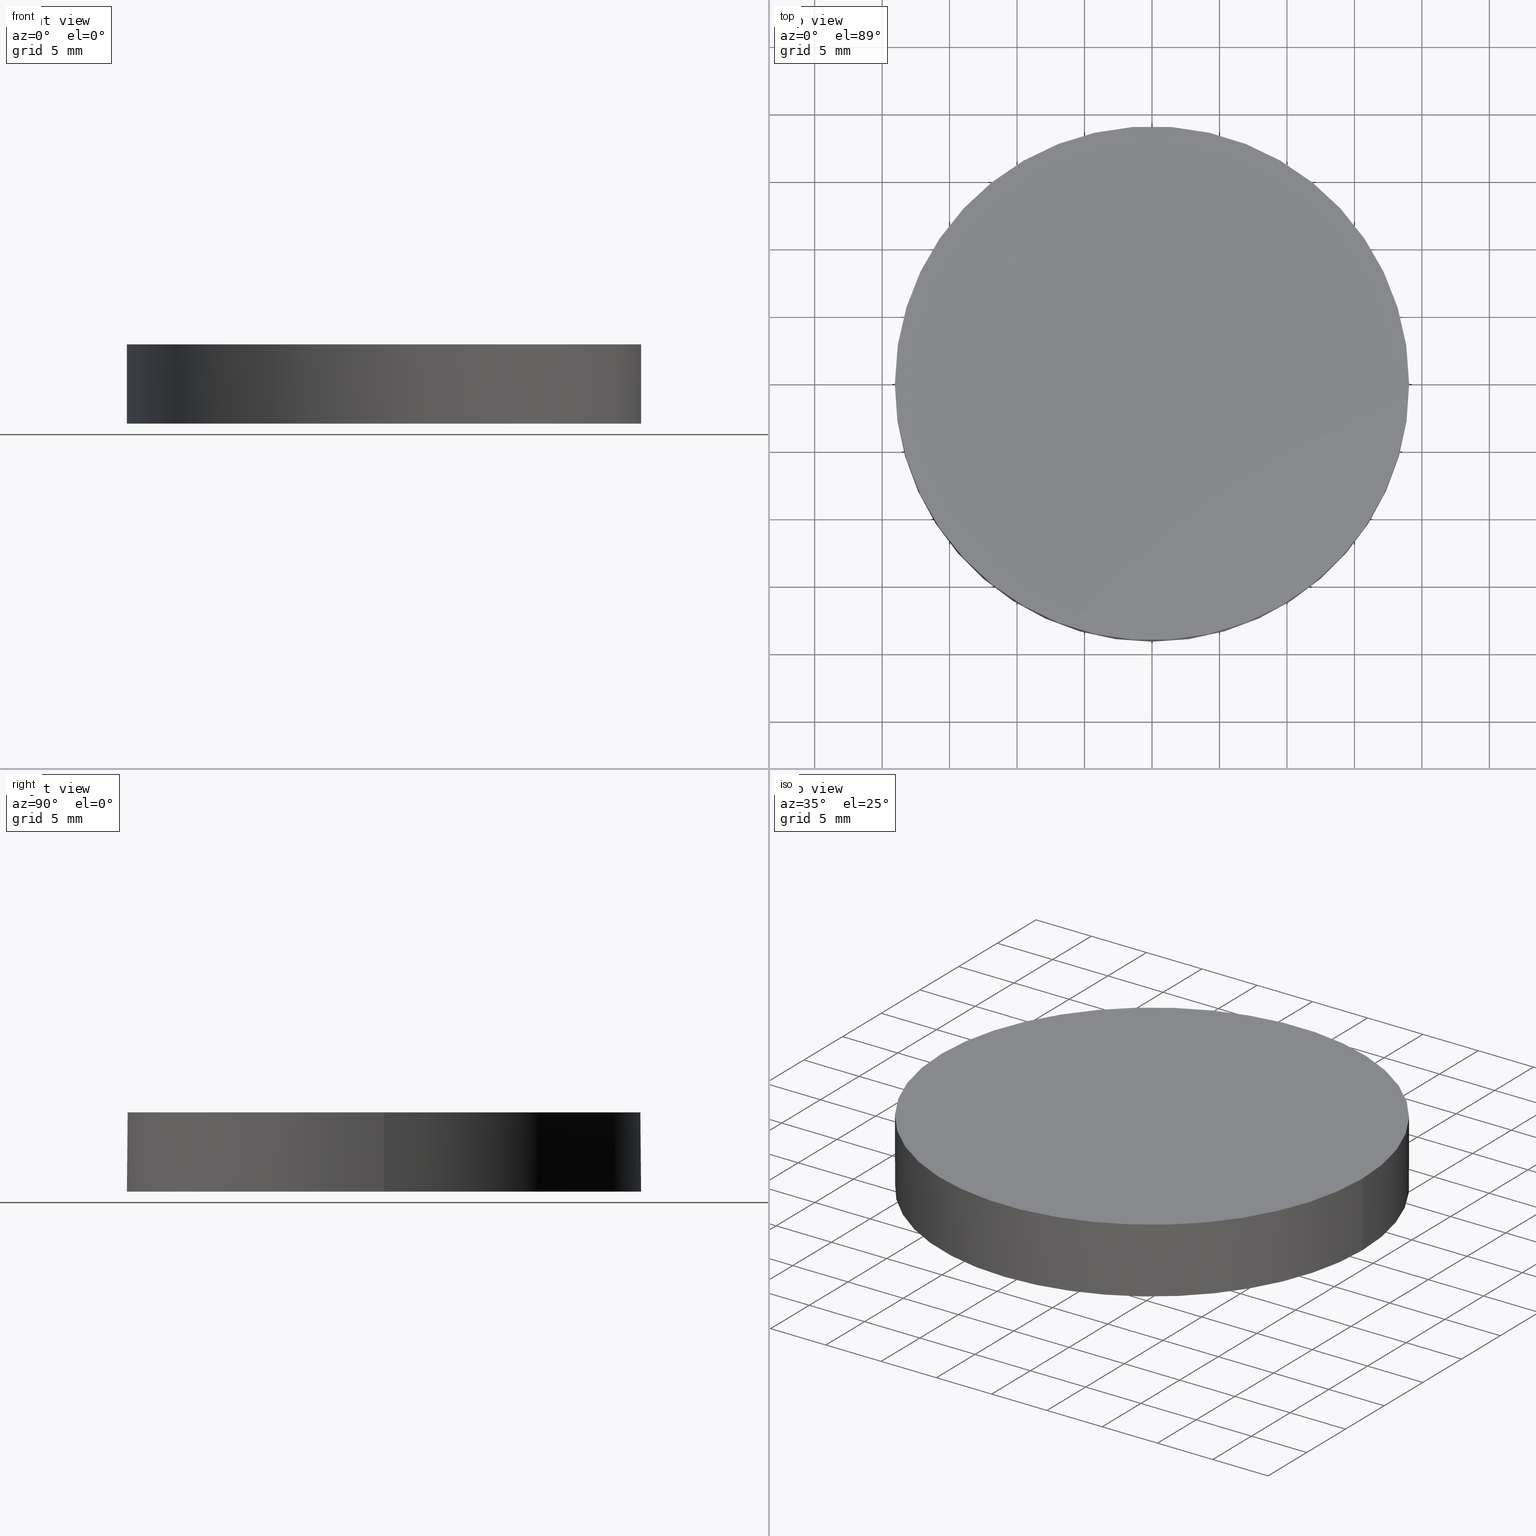
[diagram: canonical four-view strip — front | top / right | iso, engineering-drawing reading convention]
A machine part, canonical four-view strip (front | top / right | iso — engineering-drawing reading convention). The complete STEP part file that produces these views, byte-faithful:
ISO-10303-21;
HEADER;
FILE_DESCRIPTION (( 'STEP AP203' ),
    '1' );
FILE_NAME ('112-0415E BK7 pl-cv 38.1 F-200.STEP',
    '2019-01-15T14:26:54',
    ( '' ),
    ( '' ),
    'SwSTEP 2.0',
    'SolidWorks 2017',
    '' );
FILE_SCHEMA (( 'CONFIG_CONTROL_DESIGN' ));
ENDSEC;

DATA;
#1 = CIRCLE ( 'NONE', #19, 19.05000000000000100 ) ;
#2 = UNCERTAINTY_MEASURE_WITH_UNIT (LENGTH_MEASURE( 1.000000000000000100E-005 ), #45, 'distance_accuracy_value', 'NONE');
#3 = LOCAL_TIME ( 16, 26, 54.00000000000000000, #99 ) ;
#4 = ORIENTED_EDGE ( 'NONE', *, *, #121, .F. ) ;
#5 = CARTESIAN_POINT ( 'NONE',  ( -4.731295993454753300E-015, -8.881784197001250400E-016, 4.099999999999999600 ) ) ;
#6 = FACE_OUTER_BOUND ( 'NONE', #57, .T. ) ;
#7 = DIRECTION ( 'NONE',  ( 1.000000000000000000, 0.0000000000000000000, -2.832073977186420200E-016 ) ) ;
#8 = CARTESIAN_POINT ( 'NONE',  ( -12.61616734161276700, 19.27594609542215700, -2.393907391729421800 ) ) ;
#9 = CC_DESIGN_APPROVAL ( #163, ( #151 ) ) ;
#10 = CARTESIAN_POINT ( 'NONE',  ( -19.27561693584693000, -6.500846067886571200, -1.186958924546804200 ) ) ;
#11 = PERSON_AND_ORGANIZATION ( #175, #37 ) ;
#12 = DIRECTION ( 'NONE',  ( 1.000000000000000000, 0.0000000000000000000, 0.0000000000000000000 ) ) ;
#13 = APPROVAL_PERSON_ORGANIZATION ( #206, #71, #70 ) ;
#14 = LINE ( 'NONE', #165, #104 ) ;
#15 = EDGE_CURVE ( 'NONE', #77, #233, #25, .T. ) ;
#16 = DATE_AND_TIME ( #64, #68 ) ;
#17 = EDGE_LOOP ( 'NONE', ( #107, #143 ) ) ;
#18 = EDGE_CURVE ( 'NONE', #197, #208, #218, .T. ) ;
#19 = AXIS2_PLACEMENT_3D ( 'NONE', #5, #186, #156 ) ;
#20 = CARTESIAN_POINT ( 'NONE',  ( 2.175134682291738000E-014, -19.27594609542215700, -1.807272574896809500 ) ) ;
#21 = APPROVAL_DATE_TIME ( #144, #102 ) ;
#22 = CARTESIAN_POINT ( 'NONE',  ( 12.61616734161279000, -19.27594609542215700, -2.393907391729424000 ) ) ;
#23 = CARTESIAN_POINT ( 'NONE',  ( 2.176337884454689400E-014, -19.04999999999996900, -1.764787732599487400 ) ) ;
#24 = CYLINDRICAL_SURFACE ( 'NONE', #194, 19.05000000000000100 ) ;
#25 = CIRCLE ( 'NONE', #230, 19.05000000000000100 ) ;
#26 = CARTESIAN_POINT ( 'NONE',  ( 6.471666527560834000, 6.500846067886567600, 0.6095057930727018100 ) ) ;
#27 = CARTESIAN_POINT ( 'NONE',  ( -4.662936703425659800E-015, -8.881784197001250400E-016, -1.764787732599490300 ) ) ;
#28 = SECURITY_CLASSIFICATION ( '', '', #142 ) ;
#29 = DIRECTION ( 'NONE',  ( -1.165588477296749900E-017, -5.434385993627839900E-034, 1.000000000000000000 ) ) ;
#30 = CARTESIAN_POINT ( 'NONE',  ( 0.0000000000000000000, 39.06600000000000300, 4.099999999999999600 ) ) ;
#31 = DIRECTION ( 'NONE',  ( -1.165588477296749900E-017, -5.434385993627839900E-034, 1.000000000000000000 ) ) ;
#32 = CIRCLE ( 'NONE', #115, 103.6999999999999900 ) ;
#33 = DATE_TIME_ROLE ( 'creation_date' ) ;
#34 = AXIS2_PLACEMENT_3D ( 'NONE', #101, #29, #204 ) ;
#35 = PERSON_AND_ORGANIZATION_ROLE ( 'classification_officer' ) ;
#36 = PRODUCT_DEFINITION_SHAPE ( 'NONE', 'NONE',  #147 ) ;
#37 = ORGANIZATION ( 'UNSPECIFIED', 'UNSPECIFIED', '' ) ;
#38 = DATE_AND_TIME ( #126, #3 ) ;
#39 = ORIENTED_EDGE ( 'NONE', *, *, #18, .T. ) ;
#40 = CC_DESIGN_PERSON_AND_ORGANIZATION_ASSIGNMENT ( #149, #35, ( #28 ) ) ;
#41 = CC_DESIGN_APPROVAL ( #71, ( #28 ) ) ;
#42 = LOCAL_TIME ( 16, 26, 54.00000000000000000, #213 ) ;
#43 = AXIS2_PLACEMENT_3D ( 'NONE', #30, #134, #135 ) ;
#44 = FACE_OUTER_BOUND ( 'NONE', #132, .T. ) ;
#45 =( LENGTH_UNIT ( ) NAMED_UNIT ( * ) SI_UNIT ( .MILLI., .METRE. ) );
#46 = CARTESIAN_POINT ( 'NONE',  ( -12.61616734161276400, -19.27594609542215700, -2.393907391729436000 ) ) ;
#47 = CC_DESIGN_DATE_AND_TIME_ASSIGNMENT ( #38, #52, ( #28 ) ) ;
#48 = CARTESIAN_POINT ( 'NONE',  ( 2.176337884454689400E-014, 19.04999999999997600, -1.764787732599487400 ) ) ;
#49 = DIRECTION ( 'NONE',  ( 1.000000000000000000, 0.0000000000000000000, 1.138269997360109700E-017 ) ) ;
#50 = VERTEX_POINT ( 'NONE', #23 ) ;
#51 = APPROVAL_STATUS ( 'not_yet_approved' ) ;
#52 = DATE_TIME_ROLE ( 'classification_date' ) ;
#53 = EDGE_LOOP ( 'NONE', ( #176, #116, #105 ) ) ;
#54 = CYLINDRICAL_SURFACE ( 'NONE', #34, 19.05000000000000100 ) ;
#55 = CLOSED_SHELL ( 'NONE', ( #221, #164, #92, #181, #215 ) ) ;
#56 = PERSON_AND_ORGANIZATION ( #175, #37 ) ;
#57 = EDGE_LOOP ( 'NONE', ( #39, #192, #87, #162, #60 ) ) ;
#58 = CARTESIAN_POINT ( 'NONE',  ( 12.61616734161278900, 19.27594609542215700, -2.393907391729410700 ) ) ;
#59 = COORDINATED_UNIVERSAL_TIME_OFFSET ( 2, 0, .AHEAD. ) ;
#60 = ORIENTED_EDGE ( 'NONE', *, *, #73, .F. ) ;
#61 = CARTESIAN_POINT ( 'NONE',  ( -12.91540832856451200, 6.500846067886567600, 0.008956672726502827200 ) ) ;
#62 = EDGE_CURVE ( 'NONE', #195, #77, #90, .T. ) ;
#63 = CARTESIAN_POINT ( 'NONE',  ( -4.662936703425659800E-015, -8.881784197001250400E-016, -1.764787732599490300 ) ) ;
#64 = CALENDAR_DATE ( 2019, 15, 1 ) ;
#65 = CARTESIAN_POINT ( 'NONE',  ( -12.91540832856450800, -6.500846067886569400, 0.008956672726490463900 ) ) ;
#66 = ORIENTED_EDGE ( 'NONE', *, *, #212, .F. ) ;
#67 = CC_DESIGN_PERSON_AND_ORGANIZATION_ASSIGNMENT ( #106, #160, ( #111 ) ) ;
#68 = LOCAL_TIME ( 16, 26, 54.00000000000000000, #59 ) ;
#69 = APPLICATION_PROTOCOL_DEFINITION ( 'international standard', 'config_control_design', 1994, #191 ) ;
#70 = APPROVAL_ROLE ( '' ) ;
#71 = APPROVAL ( #174, 'UNSPECIFIED' ) ;
#72 = CALENDAR_DATE ( 2019, 15, 1 ) ;
#73 = EDGE_CURVE ( 'NONE', #197, #233, #14, .T. ) ;
#74 = CARTESIAN_POINT ( 'NONE',  ( 6.321722535883327300, -19.27594609542215700, -1.807272574896811000 ) ) ;
#75 = DIRECTION ( 'NONE',  ( -1.165588477296749900E-017, -5.434385993627839900E-034, 1.000000000000000000 ) ) ;
#76 = PERSON_AND_ORGANIZATION ( #175, #37 ) ;
#77 = VERTEX_POINT ( 'NONE', #112 ) ;
#78 = AXIS2_PLACEMENT_3D ( 'NONE', #138, #80, #49 ) ;
#79 = CARTESIAN_POINT ( 'NONE',  ( 6.321722535883327300, 19.27594609542215700, -1.807272574896797300 ) ) ;
#80 = DIRECTION ( 'NONE',  ( -1.165588477296749900E-017, -5.434385993627839900E-034, 1.000000000000000000 ) ) ;
#81 = CARTESIAN_POINT ( 'NONE',  ( -6.938893903907227600E-015, -6.500846067886571200, 0.6095057930726809300 ) ) ;
#82 = MANIFOLD_SOLID_BREP ( 'Imported1', #55 ) ;
#83 = AXIS2_PLACEMENT_3D ( 'NONE', #63, #31, #97 ) ;
#84 = CARTESIAN_POINT ( 'NONE',  ( -18.82901435935466600, 19.27594609542215700, -3.562114460202464800 ) ) ;
#85 = CALENDAR_DATE ( 2019, 15, 1 ) ;
#86 = CIRCLE ( 'NONE', #129, 19.05000000000000100 ) ;
#87 = ORIENTED_EDGE ( 'NONE', *, *, #62, .T. ) ;
#88 =( NAMED_UNIT ( * ) SI_UNIT ( $, .STERADIAN. ) SOLID_ANGLE_UNIT ( ) );
#89 = EDGE_LOOP ( 'NONE', ( #4, #228, #66 ) ) ;
#90 = LINE ( 'NONE', #220, #152 ) ;
#91 = CARTESIAN_POINT ( 'NONE',  ( 18.82901435935469400, 19.27594609542215700, -3.562114460202456800 ) ) ;
#92 = ADVANCED_FACE ( 'NONE', ( #201 ), #139, .F. ) ;
#93 = CIRCLE ( 'NONE', #83, 19.05000000000000100 ) ;
#94 = CARTESIAN_POINT ( 'NONE',  ( -7.105427357601000300E-015, 7.105427357601000300E-015, -103.7000000000000000 ) ) ;
#95 = EDGE_CURVE ( 'NONE', #50, #197, #86, .T. ) ;
#96 = PLANE ( 'NONE',  #43 ) ;
#97 = DIRECTION ( 'NONE',  ( 1.000000000000000000, 0.0000000000000000000, 1.138269997360109700E-017 ) ) ;
#98 = CARTESIAN_POINT ( 'NONE',  ( -6.471666527560811800, -6.500846067886569400, 0.6095057930726808200 ) ) ;
#99 = COORDINATED_UNIVERSAL_TIME_OFFSET ( 2, 0, .AHEAD. ) ;
#100 = ORIENTED_EDGE ( 'NONE', *, *, #73, .T. ) ;
#101 = CARTESIAN_POINT ( 'NONE',  ( -4.662936703425659800E-015, -8.881784197001250400E-016, -1.764787732599490100 ) ) ;
#102 = APPROVAL ( #140, 'UNSPECIFIED' ) ;
#103 = LOCAL_TIME ( 16, 26, 54.00000000000000000, #193 ) ;
#104 = VECTOR ( 'NONE', #75, 1000.000000000000000 ) ;
#105 = ORIENTED_EDGE ( 'NONE', *, *, #95, .F. ) ;
#106 = PERSON_AND_ORGANIZATION ( #175, #37 ) ;
#107 = ORIENTED_EDGE ( 'NONE', *, *, #157, .F. ) ;
#108 =( GEOMETRIC_REPRESENTATION_CONTEXT ( 3 ) GLOBAL_UNCERTAINTY_ASSIGNED_CONTEXT ( ( #2 ) ) GLOBAL_UNIT_ASSIGNED_CONTEXT ( ( #45, #210, #88 ) ) REPRESENTATION_CONTEXT ( 'NONE', 'WORKASPACE' ) );
#109 = APPROVAL_DATE_TIME ( #146, #71 ) ;
#110 = CARTESIAN_POINT ( 'NONE',  ( 12.91540832856453100, -6.500846067886569400, 0.008956672726502612100 ) ) ;
#111 = PRODUCT ( '112-0415E BK7 pl-cv 38.1 F-200', '112-0415E BK7 pl-cv 38.1 F-200', '', ( #231 ) ) ;
#112 = CARTESIAN_POINT ( 'NONE',  ( -19.05000000000000400, 1.444773732675583000E-015, 4.099999999999999600 ) ) ;
#113 = DIRECTION ( 'NONE',  ( -1.165588477296749900E-017, -5.434385993627839900E-034, 1.000000000000000000 ) ) ;
#114 = APPROVAL_PERSON_ORGANIZATION ( #76, #163, #172 ) ;
#115 = AXIS2_PLACEMENT_3D ( 'NONE', #94, #7, #154 ) ;
#116 = ORIENTED_EDGE ( 'NONE', *, *, #18, .F. ) ;
#117 = CARTESIAN_POINT ( 'NONE',  ( 2.175134682291738000E-014, 19.27594609542215700, -1.807272574896795500 ) ) ;
#118 = DESIGN_CONTEXT ( 'detailed design', #123, 'design' ) ;
#119 = CARTESIAN_POINT ( 'NONE',  ( -6.938893903907228400E-015, -19.27594609542215700, -1.807272574896819900 ) ) ;
#120 = LOCAL_TIME ( 16, 26, 54.00000000000000000, #168 ) ;
#121 = EDGE_CURVE ( 'NONE', #208, #195, #93, .T. ) ;
#122 = DIRECTION ( 'NONE',  ( -1.165588477296749900E-017, -5.434385993627839900E-034, 1.000000000000000000 ) ) ;
#123 = APPLICATION_CONTEXT ( 'configuration controlled 3d designs of mechanical parts and assemblies' ) ;
#124 = PERSON_AND_ORGANIZATION_ROLE ( 'creator' ) ;
#125 = APPROVAL_PERSON_ORGANIZATION ( #217, #102, #229 ) ;
#126 = CALENDAR_DATE ( 2019, 15, 1 ) ;
#127 = DATE_AND_TIME ( #85, #42 ) ;
#128 = CARTESIAN_POINT ( 'NONE',  ( 19.27561693584695800, 6.500846067886569400, -1.186958924546784000 ) ) ;
#129 = AXIS2_PLACEMENT_3D ( 'NONE', #27, #185, #155 ) ;
#130 = CARTESIAN_POINT ( 'NONE',  ( 19.27561693584695800, -6.500846067886571200, -1.186958924546796000 ) ) ;
#131 = DIRECTION ( 'NONE',  ( 1.000000000000000000, 0.0000000000000000000, 0.0000000000000000000 ) ) ;
#132 = EDGE_LOOP ( 'NONE', ( #158, #145, #178, #100, #150 ) ) ;
#133 = CARTESIAN_POINT ( 'NONE',  ( 2.243579633537273100E-014, 6.500846067886569400, 0.6095057930727034700 ) ) ;
#134 = DIRECTION ( 'NONE',  ( 0.0000000000000000000, 0.0000000000000000000, 1.000000000000000000 ) ) ;
#135 = DIRECTION ( 'NONE',  ( 1.000000000000000000, 0.0000000000000000000, -0.0000000000000000000 ) ) ;
#136 = AXIS2_PLACEMENT_3D ( 'NONE', #223, #173, #12 ) ;
#137 = CARTESIAN_POINT ( 'NONE',  ( -6.938893903907228400E-015, 19.27594609542215700, -1.807272574896806100 ) ) ;
#138 = CARTESIAN_POINT ( 'NONE',  ( -4.662936703425659800E-015, -8.881784197001250400E-016, -1.764787732599490300 ) ) ;
#139 =( BOUNDED_SURFACE ( )  B_SPLINE_SURFACE ( 3, 3, ( 
 ( #117, #79, #58, #91 ),
 ( #133, #26, #199, #128 ),
 ( #166, #202, #110, #130 ),
 ( #20, #74, #22, #177 ) ),
 .UNSPECIFIED., .F., .F., .F. ) 
 B_SPLINE_SURFACE_WITH_KNOTS ( ( 4, 4 ),
 ( 4, 4 ),
 ( 0.0000000000000000000, 1.000000000000000000 ),
 ( 0.0000000000000000000, 1.000000000000000000 ),
 .UNSPECIFIED. ) 
 GEOMETRIC_REPRESENTATION_ITEM ( )  RATIONAL_B_SPLINE_SURFACE ( (
 ( 1.000000000000000000, 0.9971233863345515500, 0.9971233863345515500, 1.000000000000000000),
 ( 0.9883814042115282000, 0.9855382127574982000, 0.9855382127574982000, 0.9883814042115282000),
 ( 0.9883814042115282000, 0.9855382127574982000, 0.9855382127574982000, 0.9883814042115282000),
 ( 1.000000000000000000, 0.9971233863345515500, 0.9971233863345515500, 1.000000000000000000) ) ) 
 REPRESENTATION_ITEM ( '' )  SURFACE ( )  );
#140 = APPROVAL_STATUS ( 'not_yet_approved' ) ;
#141 = CC_DESIGN_DATE_AND_TIME_ASSIGNMENT ( #127, #33, ( #147 ) ) ;
#142 = SECURITY_CLASSIFICATION_LEVEL ( 'unclassified' ) ;
#143 = ORIENTED_EDGE ( 'NONE', *, *, #15, .F. ) ;
#144 = DATE_AND_TIME ( #72, #120 ) ;
#145 = ORIENTED_EDGE ( 'NONE', *, *, #212, .T. ) ;
#146 = DATE_AND_TIME ( #148, #103 ) ;
#147 = PRODUCT_DEFINITION ( 'UNKNOWN', '', #151, #118 ) ;
#148 = CALENDAR_DATE ( 2019, 15, 1 ) ;
#149 = PERSON_AND_ORGANIZATION ( #175, #37 ) ;
#150 = ORIENTED_EDGE ( 'NONE', *, *, #157, .T. ) ;
#151 = PRODUCT_DEFINITION_FORMATION_WITH_SPECIFIED_SOURCE ( 'ANY', '', #111, .NOT_KNOWN. ) ;
#152 = VECTOR ( 'NONE', #113, 1000.000000000000000 ) ;
#153 = CARTESIAN_POINT ( 'NONE',  ( 19.04999999999999700, -8.881784197001250400E-016, 4.099999999999999600 ) ) ;
#154 = DIRECTION ( 'NONE',  ( 0.0000000000000000000, 1.000000000000000000, 0.0000000000000000000 ) ) ;
#155 = DIRECTION ( 'NONE',  ( 1.000000000000000000, 0.0000000000000000000, 1.138269997360109700E-017 ) ) ;
#156 = DIRECTION ( 'NONE',  ( 1.000000000000000000, 0.0000000000000000000, 0.0000000000000000000 ) ) ;
#157 = EDGE_CURVE ( 'NONE', #233, #77, #1, .T. ) ;
#158 = ORIENTED_EDGE ( 'NONE', *, *, #62, .F. ) ;
#159 = SHAPE_DEFINITION_REPRESENTATION ( #36, #209 ) ;
#160 = PERSON_AND_ORGANIZATION_ROLE ( 'design_owner' ) ;
#161 = CC_DESIGN_PERSON_AND_ORGANIZATION_ASSIGNMENT ( #207, #124, ( #147 ) ) ;
#162 = ORIENTED_EDGE ( 'NONE', *, *, #15, .T. ) ;
#163 = APPROVAL ( #51, 'UNSPECIFIED' ) ;
#164 = ADVANCED_FACE ( 'NONE', ( #6 ), #54, .T. ) ;
#165 = CARTESIAN_POINT ( 'NONE',  ( 19.04999999999999700, -8.881784197001250400E-016, -1.764787732599489800 ) ) ;
#166 = CARTESIAN_POINT ( 'NONE',  ( 2.243579633537273100E-014, -6.500846067886571200, 0.6095057930726915900 ) ) ;
#167 = DIRECTION ( 'NONE',  ( 1.000000000000000000, 0.0000000000000000000, 1.138269997360109700E-017 ) ) ;
#168 = COORDINATED_UNIVERSAL_TIME_OFFSET ( 2, 0, .AHEAD. ) ;
#169 = CARTESIAN_POINT ( 'NONE',  ( -19.27561693584693400, 6.500846067886569400, -1.186958924546792000 ) ) ;
#170 = CARTESIAN_POINT ( 'NONE',  ( -1.040834085586084300E-014, 6.500846067886569400, 0.6095057930726937000 ) ) ;
#171 = CIRCLE ( 'NONE', #78, 19.05000000000000100 ) ;
#172 = APPROVAL_ROLE ( '' ) ;
#173 = DIRECTION ( 'NONE',  ( 0.0000000000000000000, 0.0000000000000000000, 1.000000000000000000 ) ) ;
#174 = APPROVAL_STATUS ( 'not_yet_approved' ) ;
#175 = PERSON ( 'UNSPECIFIED', 'UNSPECIFIED', 'UNSPECIFIED', ('UNSPECIFIED'), ('UNSPECIFIED'), ('UNSPECIFIED') ) ;
#176 = ORIENTED_EDGE ( 'NONE', *, *, #226, .F. ) ;
#177 = CARTESIAN_POINT ( 'NONE',  ( 18.82901435935469400, -19.27594609542215700, -3.562114460202470100 ) ) ;
#178 = ORIENTED_EDGE ( 'NONE', *, *, #95, .T. ) ;
#179 = CARTESIAN_POINT ( 'NONE',  ( -4.662936703425659800E-015, -8.881784197001250400E-016, -1.764787732599490300 ) ) ;
#180 = CARTESIAN_POINT ( 'NONE',  ( -4.731295993454753300E-015, -8.881784197001250400E-016, 4.099999999999999600 ) ) ;
#181 = ADVANCED_FACE ( 'NONE', ( #44 ), #24, .T. ) ;
#182 = CC_DESIGN_APPROVAL ( #102, ( #147 ) ) ;
#183 = CARTESIAN_POINT ( 'NONE',  ( -6.471666527560815400, 6.500846067886567600, 0.6095057930726935900 ) ) ;
#184 = FACE_OUTER_BOUND ( 'NONE', #89, .T. ) ;
#185 = DIRECTION ( 'NONE',  ( -1.165588477296749900E-017, -5.434385993627839900E-034, 1.000000000000000000 ) ) ;
#186 = DIRECTION ( 'NONE',  ( 1.165588477296749900E-017, 5.434385993627839900E-034, -1.000000000000000000 ) ) ;
#187 = CARTESIAN_POINT ( 'NONE',  ( 19.04999999999999700, -8.881784197001250400E-016, -1.764787732599490100 ) ) ;
#188 = APPLICATION_PROTOCOL_DEFINITION ( 'international standard', 'config_control_design', 1994, #123 ) ;
#189 = PERSON_AND_ORGANIZATION_ROLE ( 'creator' ) ;
#190 = FACE_OUTER_BOUND ( 'NONE', #17, .T. ) ;
#191 = APPLICATION_CONTEXT ( 'configuration controlled 3d designs of mechanical parts and assemblies' ) ;
#192 = ORIENTED_EDGE ( 'NONE', *, *, #121, .T. ) ;
#193 = COORDINATED_UNIVERSAL_TIME_OFFSET ( 2, 0, .AHEAD. ) ;
#194 = AXIS2_PLACEMENT_3D ( 'NONE', #224, #122, #167 ) ;
#195 = VERTEX_POINT ( 'NONE', #227 ) ;
#196 = APPROVAL_DATE_TIME ( #16, #163 ) ;
#197 = VERTEX_POINT ( 'NONE', #187 ) ;
#198 = DIRECTION ( 'NONE',  ( -1.165588477296749900E-017, -5.434385993627839900E-034, 1.000000000000000000 ) ) ;
#199 = CARTESIAN_POINT ( 'NONE',  ( 12.91540832856453300, 6.500846067886567600, 0.008956672726514753500 ) ) ;
#200 = DIRECTION ( 'NONE',  ( 1.165588477296749900E-017, 5.434385993627839900E-034, -1.000000000000000000 ) ) ;
#201 = FACE_OUTER_BOUND ( 'NONE', #53, .T. ) ;
#202 = CARTESIAN_POINT ( 'NONE',  ( 6.471666527560833200, -6.500846067886569400, 0.6095057930726895900 ) ) ;
#203 = CARTESIAN_POINT ( 'NONE',  ( -6.321722535883306000, 19.27594609542215700, -1.807272574896806100 ) ) ;
#204 = DIRECTION ( 'NONE',  ( 1.000000000000000000, 0.0000000000000000000, 1.138269997360109700E-017 ) ) ;
#205 = AXIS2_PLACEMENT_3D ( 'NONE', #179, #198, #216 ) ;
#206 = PERSON_AND_ORGANIZATION ( #175, #37 ) ;
#207 = PERSON_AND_ORGANIZATION ( #175, #37 ) ;
#208 = VERTEX_POINT ( 'NONE', #48 ) ;
#209 = ADVANCED_BREP_SHAPE_REPRESENTATION ( '112-0415E BK7 pl-cv 38.1 F-200', ( #82, #136 ), #108 ) ;
#210 =( NAMED_UNIT ( * ) PLANE_ANGLE_UNIT ( ) SI_UNIT ( $, .RADIAN. ) );
#211 = CC_DESIGN_PERSON_AND_ORGANIZATION_ASSIGNMENT ( #11, #232, ( #151 ) ) ;
#212 = EDGE_CURVE ( 'NONE', #195, #50, #171, .T. ) ;
#213 = COORDINATED_UNIVERSAL_TIME_OFFSET ( 2, 0, .AHEAD. ) ;
#214 = PRODUCT_RELATED_PRODUCT_CATEGORY ( 'detail', '', ( #111 ) ) ;
#215 = ADVANCED_FACE ( 'NONE', ( #190 ), #96, .T. ) ;
#216 = DIRECTION ( 'NONE',  ( 1.000000000000000000, 0.0000000000000000000, 1.138269997360109700E-017 ) ) ;
#217 = PERSON_AND_ORGANIZATION ( #175, #37 ) ;
#218 = CIRCLE ( 'NONE', #205, 19.05000000000000100 ) ;
#219 = CC_DESIGN_SECURITY_CLASSIFICATION ( #28, ( #151 ) ) ;
#220 = CARTESIAN_POINT ( 'NONE',  ( -19.05000000000000400, 1.444773732675583000E-015, -1.764787732599490300 ) ) ;
#221 = ADVANCED_FACE ( 'NONE', ( #184 ), #235, .F. ) ;
#222 = CARTESIAN_POINT ( 'NONE',  ( -18.82901435935466200, -19.27594609542215700, -3.562114460202478600 ) ) ;
#223 = CARTESIAN_POINT ( 'NONE',  ( 0.0000000000000000000, 0.0000000000000000000, 0.0000000000000000000 ) ) ;
#224 = CARTESIAN_POINT ( 'NONE',  ( -4.662936703425659800E-015, -8.881784197001250400E-016, -1.764787732599490100 ) ) ;
#225 = CARTESIAN_POINT ( 'NONE',  ( -6.321722535883305100, -19.27594609542215700, -1.807272574896819900 ) ) ;
#226 = EDGE_CURVE ( 'NONE', #208, #50, #32, .T. ) ;
#227 = CARTESIAN_POINT ( 'NONE',  ( -19.05000000000000400, 1.444773732675583000E-015, -1.764787732599490500 ) ) ;
#228 = ORIENTED_EDGE ( 'NONE', *, *, #226, .T. ) ;
#229 = APPROVAL_ROLE ( '' ) ;
#230 = AXIS2_PLACEMENT_3D ( 'NONE', #180, #200, #131 ) ;
#231 = MECHANICAL_CONTEXT ( 'NONE', #191, 'mechanical' ) ;
#232 = PERSON_AND_ORGANIZATION_ROLE ( 'design_supplier' ) ;
#233 = VERTEX_POINT ( 'NONE', #153 ) ;
#234 = CC_DESIGN_PERSON_AND_ORGANIZATION_ASSIGNMENT ( #56, #189, ( #151 ) ) ;
#235 =( BOUNDED_SURFACE ( )  B_SPLINE_SURFACE ( 3, 3, ( 
 ( #84, #8, #203, #137 ),
 ( #169, #61, #183, #170 ),
 ( #10, #65, #98, #81 ),
 ( #222, #46, #225, #119 ) ),
 .UNSPECIFIED., .F., .F., .T. ) 
 B_SPLINE_SURFACE_WITH_KNOTS ( ( 4, 4 ),
 ( 4, 4 ),
 ( 0.0000000000000000000, 1.000000000000000000 ),
 ( 0.0000000000000000000, 1.000000000000000000 ),
 .UNSPECIFIED. ) 
 GEOMETRIC_REPRESENTATION_ITEM ( )  RATIONAL_B_SPLINE_SURFACE ( (
 ( 1.000000000000000000, 0.9971233863345515500, 0.9971233863345515500, 1.000000000000000000),
 ( 0.9883814042115282000, 0.9855382127574982000, 0.9855382127574982000, 0.9883814042115282000),
 ( 0.9883814042115282000, 0.9855382127574982000, 0.9855382127574982000, 0.9883814042115282000),
 ( 1.000000000000000000, 0.9971233863345515500, 0.9971233863345515500, 1.000000000000000000) ) ) 
 REPRESENTATION_ITEM ( '' )  SURFACE ( )  );
ENDSEC;
END-ISO-10303-21;
